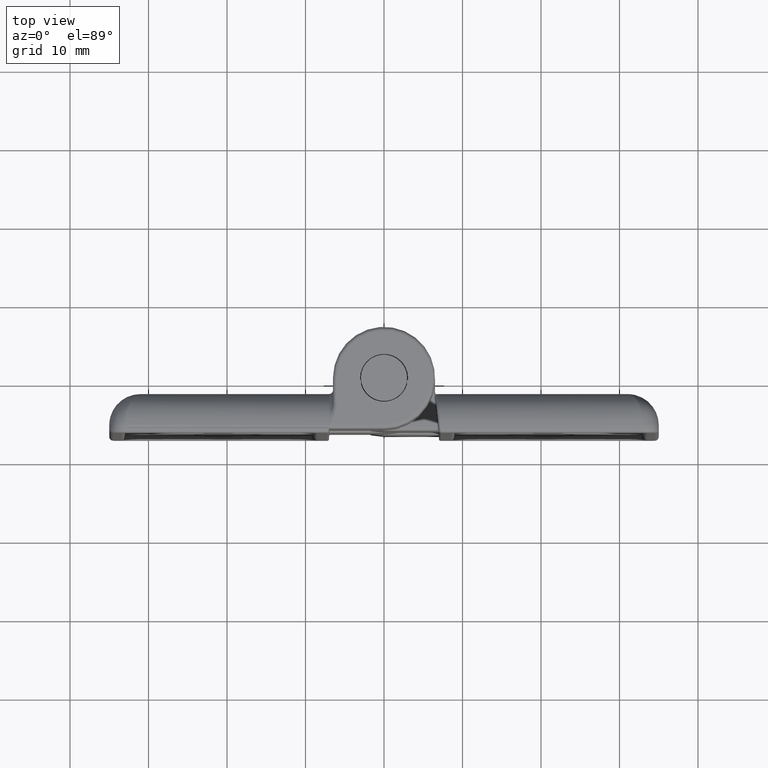
[diagram: clean part render]
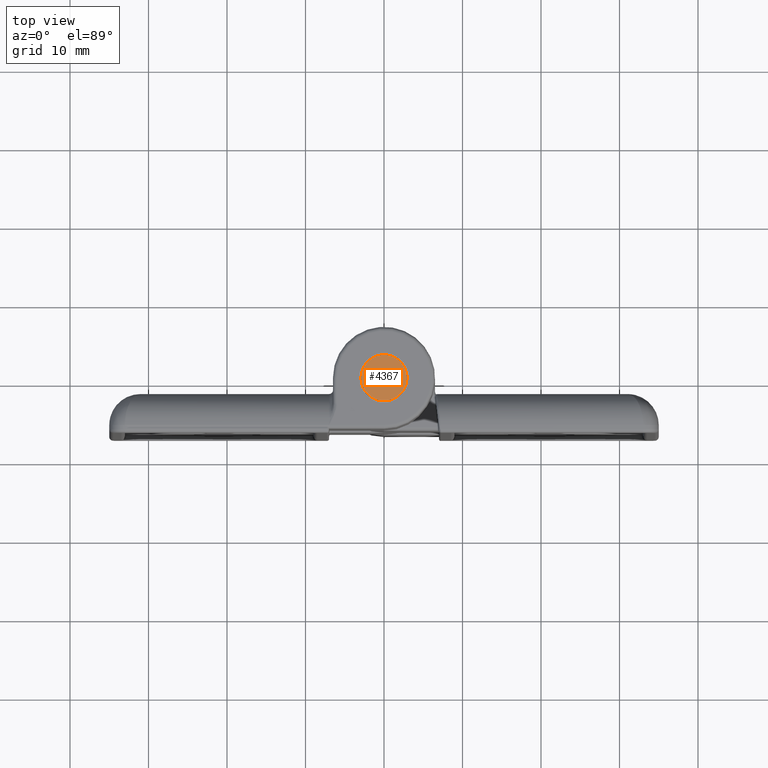
[diagram: same view with one face highlighted and labeled with its STEP entity id]
A machine part, top view. The second image highlights one B-rep face of the part: STEP entity #4367.
In plain terms, the highlighted planar face has unit normal (0, 0, -1).
Its self-contained STEP definition (entity closure, byte-faithful):
#206=PLANE('',#4973);
#1137=FACE_OUTER_BOUND('',#1440,.T.);
#1440=EDGE_LOOP('',(#4010));
#1769=CIRCLE('',#4972,2.95);
#2124=VERTEX_POINT('',#8688);
#2754=EDGE_CURVE('',#2124,#2124,#1769,.T.);
#4010=ORIENTED_EDGE('',*,*,#2754,.F.);
#4367=ADVANCED_FACE('',(#1137),#206,.F.);
#4972=AXIS2_PLACEMENT_3D('',#8689,#6442,#6443);
#4973=AXIS2_PLACEMENT_3D('',#8690,#6444,#6445);
#6442=DIRECTION('center_axis',(0.,0.,-1.));
#6443=DIRECTION('ref_axis',(-1.,0.,0.));
#6444=DIRECTION('center_axis',(0.,0.,-1.));
#6445=DIRECTION('ref_axis',(-1.,0.,0.));
#8688=CARTESIAN_POINT('',(2.95,3.61270805748469E-16,30.));
#8689=CARTESIAN_POINT('Origin',(0.,0.,30.));
#8690=CARTESIAN_POINT('Origin',(0.,0.,30.));